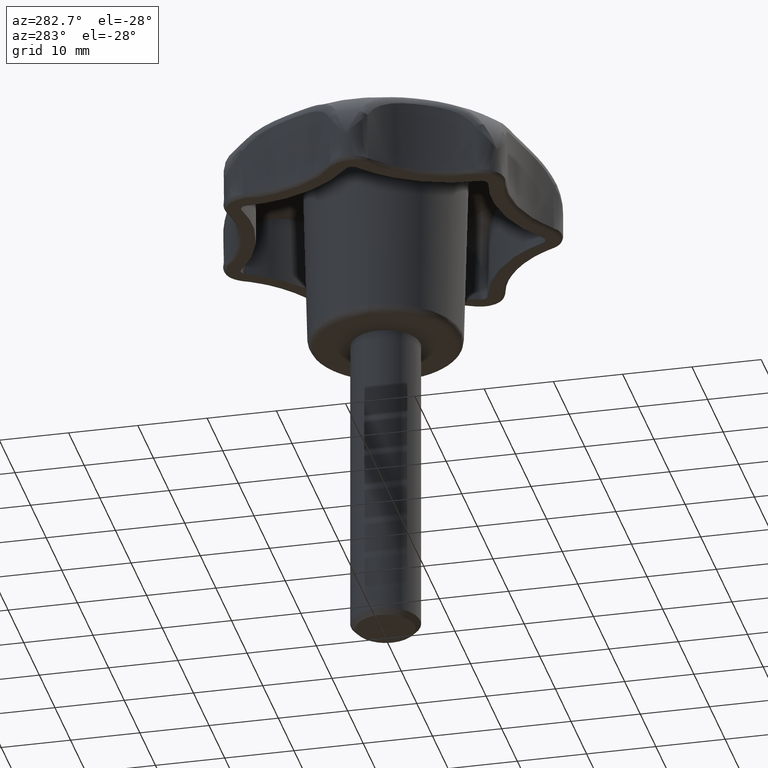
[diagram: clean part render]
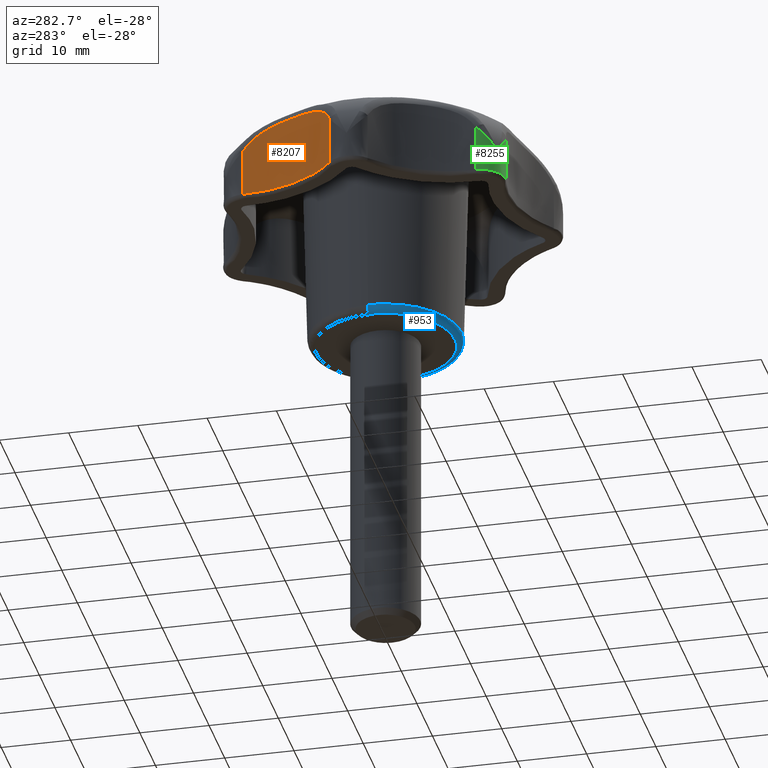
[diagram: same view with three faces highlighted in distinct colors, each labeled with its STEP entity id]
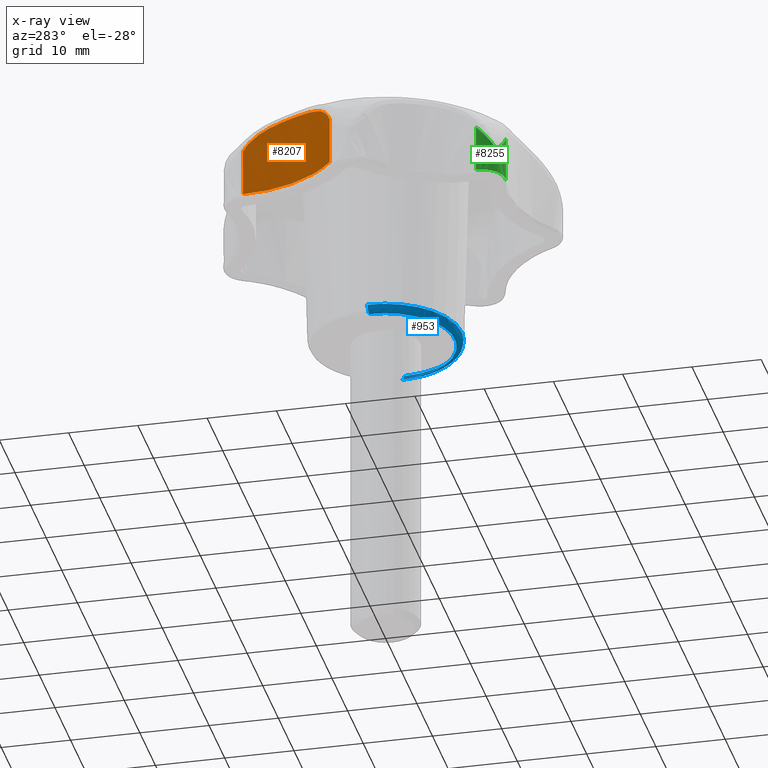
[diagram: x-ray of the same camera — body ghosted, the three highlighted faces saturated]
A machine part, auxiliary view with three faces highlighted in distinct colors.
The next image is the same camera in x-ray (body ghosted, the three faces saturated) — at least one of them is partly hidden behind the body in this view.
Their STEP definitions:

[orange] entity #8207 — the highlighted face is a freeform B-spline surface patch.
#3304=CARTESIAN_POINT('',(-16.905030000000000,16.809377000000001,17.500000000000000));
#3305=VERTEX_POINT('',#3304);
#3596=CARTESIAN_POINT('',(-16.905030000000000,16.809377000000001,24.301414682178500));
#3597=VERTEX_POINT('',#3596);
#3598=CARTESIAN_POINT('',(-16.905030000000000,16.809377000000001,24.301414682178500));
#3599=CARTESIAN_POINT('',(-16.905030000000000,16.809377000000001,17.500000000000000));
#3600=QUASI_UNIFORM_CURVE('',1,(#3598,#3599),.UNSPECIFIED.,.F.,.U.);
#3601=EDGE_CURVE('',#3597,#3305,#3600,.T.);
#4002=CARTESIAN_POINT('',(-23.682214326973849,2.736410172315180,24.301413809661799));
#4003=VERTEX_POINT('',#4002);
#5917=CARTESIAN_POINT('',(-23.682214326973849,2.736410172315180,24.301413809661799));
#5918=CARTESIAN_POINT('',(-23.605401000148301,2.797666287237751,24.470153981205261));
#5919=CARTESIAN_POINT('',(-23.523137919017220,2.864292268412321,24.633567770428272));
#5920=CARTESIAN_POINT('',(-23.392060199538069,2.972659894649852,24.870797247501230));
#5921=CARTESIAN_POINT('',(-23.347085823468849,3.010189261846792,24.948556986351630));
#5922=CARTESIAN_POINT('',(-23.254642629549519,3.088147829876220,25.101441909287480));
#5923=CARTESIAN_POINT('',(-23.207098000570451,3.128643670533346,25.176672222170041));
#5924=CARTESIAN_POINT('',(-22.965174103384989,3.336994838994365,25.543458079341150));
#5925=CARTESIAN_POINT('',(-22.757162778589219,3.523295071185871,25.809008760911869));
#5926=CARTESIAN_POINT('',(-22.429001564703469,3.833577323536156,26.169136389150811));
#5927=CARTESIAN_POINT('',(-22.316910586655460,3.942158534709809,26.282789287257451));
#5928=CARTESIAN_POINT('',(-22.145341122851271,4.113044651329144,26.443988811080061));
#5929=CARTESIAN_POINT('',(-22.087520768548931,4.171402563360294,26.496224970568012));
#5930=CARTESIAN_POINT('',(-21.971085187890449,4.290590622846811,26.597431883347578));
#5931=CARTESIAN_POINT('',(-21.912764666411501,4.351117693688094,26.646151492157308));
#5932=CARTESIAN_POINT('',(-21.620905265312611,4.658370247470036,26.880825945492109));
#5933=CARTESIAN_POINT('',(-21.386648331719851,4.918924686124488,27.040134716609561));
#5934=CARTESIAN_POINT('',(-21.038317510972519,5.331282230565943,27.244233732392079));
#5935=CARTESIAN_POINT('',(-20.922705952608919,5.472326770290310,27.306431520279350));
#5936=CARTESIAN_POINT('',(-20.750487176282089,5.689240271036694,27.391765615882051));
#5937=CARTESIAN_POINT('',(-20.693280243531159,5.762436097078886,27.418882140126051));
#5938=CARTESIAN_POINT('',(-20.579335308597109,5.910606149035420,27.470578066303450));
#5939=CARTESIAN_POINT('',(-20.522505273628020,5.985705220807476,27.495194467836779));
#5940=CARTESIAN_POINT('',(-20.241032692430739,6.363832706960896,27.611669076204912));
#5941=CARTESIAN_POINT('',(-20.024547292821889,6.674504563882254,27.683930181829961));
#5942=CARTESIAN_POINT('',(-19.610072220134811,7.311552438178095,27.796213057376189));
#5943=CARTESIAN_POINT('',(-19.412076153632832,7.637927307042806,27.836214697572700));
#5944=CARTESIAN_POINT('',(-19.129615766604971,8.139135777644938,27.875954754687680));
#5945=CARTESIAN_POINT('',(-19.037883501366981,8.308149990809076,27.885792517717459));
#5946=CARTESIAN_POINT('',(-18.859366545555389,8.650094986392436,27.898921231239669));
#5947=CARTESIAN_POINT('',(-18.772511711019980,8.823171425547034,27.902212504102391));
#5948=CARTESIAN_POINT('',(-18.519975673410240,9.347440388000727,27.902270343031709));
#5949=CARTESIAN_POINT('',(-18.363744157228059,9.700651957925651,27.889380865396252));
#5950=CARTESIAN_POINT('',(-18.075022564175729,10.414147624426210,27.836310216962840));
#5951=CARTESIAN_POINT('',(-17.942536479884190,10.774433429548120,27.796130513454489));
#5952=CARTESIAN_POINT('',(-17.761498800000229,11.319748544971191,27.711045861106669));
#5953=CARTESIAN_POINT('',(-17.703994196446580,11.502737355428700,27.678417153600609));
#5954=CARTESIAN_POINT('',(-17.595872368305081,11.866794768655740,27.604419673959541));
#5955=CARTESIAN_POINT('',(-17.545147887759931,12.048145192052260,27.563024241966222));
#5956=CARTESIAN_POINT('',(-17.402654887952519,12.589636894646979,27.424282751557922));
#5957=CARTESIAN_POINT('',(-17.320572900339510,12.947250671537210,27.312474721297150));
#5958=CARTESIAN_POINT('',(-17.215465910889701,13.475968811079721,27.108739409278819));
#5959=CARTESIAN_POINT('',(-17.183431819688192,13.650916999361240,27.034801915374899));
#5960=CARTESIAN_POINT('',(-17.139696190024679,13.910990805897470,26.913736232906420));
#5961=CARTESIAN_POINT('',(-17.125836734621789,13.997290000531180,26.871685868199201));
#5962=CARTESIAN_POINT('',(-17.099522554685191,14.169026440871461,26.783981740142298));
#5963=CARTESIAN_POINT('',(-17.087095847941161,14.254298362655760,26.738402692907730));
#5964=CARTESIAN_POINT('',(-17.028836372963710,14.674670919398521,26.503118555808200));
#5965=CARTESIAN_POINT('',(-16.994211381814200,14.994485260673310,26.289986174945781));
#5966=CARTESIAN_POINT('',(-16.956101377593789,15.446007934954149,25.928661340331370));
#5967=CARTESIAN_POINT('',(-16.945703781846351,15.591807697850440,25.801270630127679));
#5968=CARTESIAN_POINT('',(-16.928836444304750,15.873247487710840,25.531646411219441));
#5969=CARTESIAN_POINT('',(-16.922469393269079,16.007126268251501,25.391080176841541));
#5970=CARTESIAN_POINT('',(-16.908187942507212,16.387423444468951,24.952947503932940));
#5971=CARTESIAN_POINT('',(-16.905030000000000,16.612992932910430,24.638703118879050));
#5972=CARTESIAN_POINT('',(-16.905030000000000,16.809377000000001,24.301414682178500));
#5973=B_SPLINE_CURVE_WITH_KNOTS('',3,(#5917,#5918,#5919,#5920,#5921,#5922,#5923,#5924,#5925,#5926,#5927,#5928,#5929,#5930,#5931,#5932,#5933,#5934,#5935,#5936,#5937,#5938,#5939,#5940,#5941,#5942,#5943,#5944,#5945,#5946,#5947,#5948,#5949,#5950,#5951,#5952,#5953,#5954,#5955,#5956,#5957,#5958,#5959,#5960,#5961,#5962,#5963,#5964,#5965,#5966,#5967,#5968,#5969,#5970,#5971,#5972),.UNSPECIFIED.,.F.,.U.,(4,2,2,2,2,2,2,2,2,2,2,2,2,2,2,2,2,2,2,2,2,2,2,2,2,2,2,4),(6.141086E-009,0.031250000000000,0.046875000000000,0.062500000000001,0.125000000000000,0.156250000000001,0.171875000000001,0.187500000000001,0.250000000000001,0.281250000000001,0.296875000000000,0.312500000000000,0.375000000000000,0.437500000000000,0.468750000000000,0.500000000000000,0.562500000000000,0.625000000000000,0.656250000000000,0.687500000000000,0.750000000000000,0.781250000000001,0.796875000000001,0.812500000000001,0.875000000000001,0.906250000000001,0.937500000000000,1.0),.UNSPECIFIED.);
#5974=EDGE_CURVE('',#4003,#3597,#5973,.T.);
#7996=CARTESIAN_POINT('',(-23.682214326973849,2.736410172315180,17.500000000000000));
#7997=VERTEX_POINT('',#7996);
#8051=CARTESIAN_POINT('',(-16.905030000000000,16.809377000000001,17.500000000000000));
#8052=CARTESIAN_POINT('',(-16.905029999999989,8.141033440242071,17.500000000000004));
#8053=CARTESIAN_POINT('',(-23.682214101198490,2.736409889201794,17.500000000000000));
#8061=(BOUNDED_CURVE()B_SPLINE_CURVE(2,(#8051,#8052,#8053),.UNSPECIFIED.,.F.,.U.)CURVE()GEOMETRIC_REPRESENTATION_ITEM()QUASI_UNIFORM_CURVE()RATIONAL_B_SPLINE_CURVE((1.0,0.900968859660432,1.0))REPRESENTATION_ITEM(''));
#8062=EDGE_CURVE('',#3305,#7997,#8061,.T.);
#8183=CARTESIAN_POINT('',(-24.198219838475872,2.339953508890089,28.162287666730819));
#8184=CARTESIAN_POINT('',(-24.198219838475872,2.339953508890089,17.233442808331720));
#8185=CARTESIAN_POINT('',(-16.507380171212453,8.030875496950060,28.162287666730823));
#8186=CARTESIAN_POINT('',(-16.507380171212453,8.030875496950060,17.233442808331723));
#8187=CARTESIAN_POINT('',(-16.921935220763711,17.589314280173415,28.162287666730823));
#8188=CARTESIAN_POINT('',(-16.921935220763711,17.589314280173415,17.233442808331723));
#8196=(BOUNDED_SURFACE()B_SPLINE_SURFACE(1,2,((#8183,#8185,#8187),(#8184,#8186,#8188)),.UNSPECIFIED.,.F.,.F.,.U.)B_SPLINE_SURFACE_WITH_KNOTS((2,2),(3,3),(0.0,10.928844858399099),(0.0,17.945983702385281),.UNSPECIFIED.)GEOMETRIC_REPRESENTATION_ITEM()RATIONAL_B_SPLINE_SURFACE(((1.0,0.879150756821254,0.991265390878187),(1.0,0.879150756821254,0.991265390878187)))REPRESENTATION_ITEM('')SURFACE());
#8197=CARTESIAN_POINT('',(-23.682214326973849,2.736410172315180,24.301413809661799));
#8198=CARTESIAN_POINT('',(-23.682214326973849,2.736410172315180,17.500000000000000));
#8199=QUASI_UNIFORM_CURVE('',1,(#8197,#8198),.UNSPECIFIED.,.F.,.U.);
#8200=EDGE_CURVE('',#4003,#7997,#8199,.T.);
#8201=ORIENTED_EDGE('',*,*,#8200,.F.);
#8202=ORIENTED_EDGE('',*,*,#5974,.T.);
#8203=ORIENTED_EDGE('',*,*,#3601,.T.);
#8204=ORIENTED_EDGE('',*,*,#8062,.T.);
#8205=EDGE_LOOP('',(#8201,#8202,#8203,#8204));
#8206=FACE_OUTER_BOUND('',#8205,.T.);
#8207=ADVANCED_FACE('',(#8206),#8196,.F.);

[blue] entity #953 — the highlighted face is a freeform B-spline surface patch.
#750=CARTESIAN_POINT('',(-10.025842676378041,0.0,0.0));
#751=VERTEX_POINT('',#750);
#752=CARTESIAN_POINT('',(-10.025051082478480,0.125985139209719,1.871005E-016));
#753=VERTEX_POINT('',#752);
#754=CARTESIAN_POINT('',(-10.025842676378041,0.0,0.0));
#755=CARTESIAN_POINT('',(-10.025842678625093,0.062995056517288,9.355026E-017));
#756=CARTESIAN_POINT('',(-10.025051082478484,0.125985139209719,1.871005E-016));
#764=(BOUNDED_CURVE()B_SPLINE_CURVE(2,(#754,#755,#756),.UNSPECIFIED.,.F.,.U.)B_SPLINE_CURVE_WITH_KNOTS((3,3),(0.0,0.002215704082090),.UNSPECIFIED.)CURVE()GEOMETRIC_REPRESENTATION_ITEM()RATIONAL_B_SPLINE_CURVE((1.0,0.997404141197834,0.994854295635224))REPRESENTATION_ITEM(''));
#765=EDGE_CURVE('',#751,#753,#764,.T.);
#796=CARTESIAN_POINT('',(10.025051082478480,-0.125985139209717,1.871005E-016));
#797=VERTEX_POINT('',#796);
#811=CARTESIAN_POINT('',(10.025051082478480,-0.125985139209717,1.871005E-016));
#812=CARTESIAN_POINT('',(10.014531916175100,-0.983740842201013,1.870527E-016));
#813=CARTESIAN_POINT('',(9.802982444361600,-2.472013277428135,1.851660E-016));
#814=CARTESIAN_POINT('',(9.036132102276612,-4.485051421684818,1.781286E-016));
#815=CARTESIAN_POINT('',(8.136429560410763,-5.931361138556760,1.698183E-016));
#816=CARTESIAN_POINT('',(7.223722463484466,-6.981620881684022,1.613635E-016));
#817=CARTESIAN_POINT('',(6.292153064178888,-7.841565221970505,1.527215E-016));
#818=CARTESIAN_POINT('',(5.089060416010184,-8.695211347811030,1.415456E-016));
#819=CARTESIAN_POINT('',(3.405213399210645,-9.500315294949706,1.258810E-016));
#820=CARTESIAN_POINT('',(1.692446144356918,-9.932771486440782,1.099247E-016));
#821=CARTESIAN_POINT('',(0.121142777405609,-10.052660163982440,9.527001E-017));
#822=CARTESIAN_POINT('',(-1.227761812256289,-9.982315539522379,8.267937E-017));
#823=CARTESIAN_POINT('',(-2.655683593241932,-9.708273007619917,6.933949E-017));
#824=CARTESIAN_POINT('',(-4.218932564935768,-9.151091605625551,5.472029E-017));
#825=CARTESIAN_POINT('',(-5.753098409417582,-8.279691404636461,4.035403E-017));
#826=CARTESIAN_POINT('',(-6.976359322348848,-7.249396461246943,2.887948E-017));
#827=CARTESIAN_POINT('',(-8.009900378443001,-6.088127872255979,1.916752E-017));
#828=CARTESIAN_POINT('',(-8.789532654692165,-4.907536273236334,1.182362E-017));
#829=CARTESIAN_POINT('',(-9.485925844389477,-3.380238189180789,5.236096E-018));
#830=CARTESIAN_POINT('',(-9.922505477861003,-1.776864585816923,1.068406E-018));
#831=CARTESIAN_POINT('',(-10.025880267143201,-0.571860520380574,3.317664E-020));
#832=CARTESIAN_POINT('',(-10.025842676378041,0.0,0.0));
#833=B_SPLINE_CURVE_WITH_KNOTS('',3,(#811,#812,#813,#814,#815,#816,#817,#818,#819,#820,#821,#822,#823,#824,#825,#826,#827,#828,#829,#830,#831,#832),.UNSPECIFIED.,.F.,.U.,(4,1,1,1,1,1,1,1,1,1,1,1,1,1,1,1,1,1,1,4),(0.000000143415754,2.573392758754878,4.472839126913513,6.433534037142657,7.658979924012872,8.639334755467683,10.232405299344769,12.070584201304101,14.215084172034389,15.501808086450501,16.788434348078209,18.258980425876629,19.852041884165232,21.751487728899789,23.528381977242748,24.631283211562192,26.408180766125941,27.756156466935320,29.655590134597372,31.371174065977740),.UNSPECIFIED.);
#834=EDGE_CURVE('',#797,#751,#833,.T.);
#845=CARTESIAN_POINT('',(11.027940483581160,0.169657150837379,1.042530501578344));
#846=CARTESIAN_POINT('',(11.026015201079675,0.016456102047330,1.042530501578344));
#847=CARTESIAN_POINT('',(10.885527553815916,-11.162607171165357,1.042530501578344));
#848=CARTESIAN_POINT('',(-0.138539808674720,-11.024067362490634,1.042530501578344));
#849=CARTESIAN_POINT('',(-11.162607171165357,-10.885527553815917,1.042530501578344));
#850=CARTESIAN_POINT('',(-11.022119523899864,0.293535719535470,1.042530501578344));
#851=CARTESIAN_POINT('',(-11.020194241396679,0.446736768461016,1.042530501578344));
#852=CARTESIAN_POINT('',(11.075498973596124,0.170388804941432,-0.074374273885127));
#853=CARTESIAN_POINT('',(11.073565388227141,0.016527069728564,-0.074374273885127));
#854=CARTESIAN_POINT('',(10.932471881657236,-11.210746417335688,-0.074374273885127));
#855=CARTESIAN_POINT('',(-0.139137267839225,-11.071609149496464,-0.074374273885127));
#856=CARTESIAN_POINT('',(-11.210746417335688,-10.932471881657239,-0.074374273885127));
#857=CARTESIAN_POINT('',(-11.069652910764034,0.294801605546312,-0.074374273885127));
#858=CARTESIAN_POINT('',(-11.067719325393345,0.448663340895262,-0.074374273885127));
#859=CARTESIAN_POINT('',(9.959915466003144,0.153226332972964,0.002358440826706));
#860=CARTESIAN_POINT('',(9.958176641696696,0.014862374850078,0.002358440826706));
#861=CARTESIAN_POINT('',(9.831294827921230,-10.081540063671428,0.002358440826706));
#862=CARTESIAN_POINT('',(-0.125122617875099,-9.956417445796328,0.002358440826706));
#863=CARTESIAN_POINT('',(-10.081540063671428,-9.831294827921230,0.002358440826706));
#864=CARTESIAN_POINT('',(-9.954658249894386,0.265107610725543,0.002358440826706));
#865=CARTESIAN_POINT('',(-9.952919425586400,0.403471568970804,0.002358440826706));
#873=(BOUNDED_SURFACE()B_SPLINE_SURFACE(2,2,((#845,#852,#859),(#846,#853,#860),(#847,#854,#861),(#848,#855,#862),(#849,#856,#863),(#850,#857,#864),(#851,#858,#865)),.UNSPECIFIED.,.F.,.F.,.U.)B_SPLINE_SURFACE_WITH_KNOTS((3,1,2,1,3),(3,3),(0.0,0.365334302339291,18.632049421608070,36.898764540876840,37.264098843544971),(0.0,1.789087496624329),.UNSPECIFIED.)GEOMETRIC_REPRESENTATION_ITEM()RATIONAL_B_SPLINE_SURFACE(((0.926890788416479,0.618103863963236,0.927312414658500),(0.921524062986427,0.614525024075516,0.921943247999877),(0.647821066019926,0.432004189779236,0.648115748376231),(0.916157337556375,0.610946184187796,0.916574081341254),(0.647821066019926,0.432004189779236,0.648115748376231),(0.921524062991258,0.614525024078738,0.921943248004710),(0.926890788426140,0.618103863969679,0.927312414668166)))REPRESENTATION_ITEM('')SURFACE());
#874=ORIENTED_EDGE('',*,*,#834,.F.);
#875=CARTESIAN_POINT('',(11.024629472860170,-0.138546872775112,0.973822999676004));
#876=VERTEX_POINT('',#875);
#877=CARTESIAN_POINT('',(11.024629472860168,-0.138546872775112,0.973822999676004));
#878=CARTESIAN_POINT('',(10.999130982987852,-0.138226432521972,4.378313E-009));
#879=CARTESIAN_POINT('',(10.025051082478484,-0.125985139209717,1.871005E-016));
#887=(BOUNDED_CURVE()B_SPLINE_CURVE(2,(#877,#878,#879),.UNSPECIFIED.,.F.,.U.)B_SPLINE_CURVE_WITH_KNOTS((3,3),(-1.730267170216835,-0.268636020562902),.UNSPECIFIED.)CURVE()GEOMETRIC_REPRESENTATION_ITEM()RATIONAL_B_SPLINE_CURVE((0.889695866829231,0.637426581566317,0.890074757308428))REPRESENTATION_ITEM(''));
#888=EDGE_CURVE('',#876,#797,#887,.T.);
#889=ORIENTED_EDGE('',*,*,#888,.F.);
#890=CARTESIAN_POINT('',(0.096209389753238,-11.025080218294979,0.973822682201087));
#891=VERTEX_POINT('',#890);
#892=CARTESIAN_POINT('',(11.024629472860171,-0.138546872775112,0.973822999676004));
#893=CARTESIAN_POINT('',(10.889001651023793,-10.930897873059601,0.973822840859784));
#894=CARTESIAN_POINT('',(0.096209389753238,-11.025080218294979,0.973822682201087));
#902=(BOUNDED_CURVE()B_SPLINE_CURVE(2,(#892,#893,#894),.UNSPECIFIED.,.F.,.U.)B_SPLINE_CURVE_WITH_KNOTS((3,3),(0.502215704078931,0.748460185984060),.UNSPECIFIED.)CURVE()GEOMETRIC_REPRESENTATION_ITEM()RATIONAL_B_SPLINE_CURVE((0.994854295642495,0.711474667200933,0.996414213981245))REPRESENTATION_ITEM(''));
#903=EDGE_CURVE('',#876,#891,#902,.T.);
#904=ORIENTED_EDGE('',*,*,#903,.T.);
#905=CARTESIAN_POINT('',(-11.025499999999990,0.0,0.973822999999896));
#906=VERTEX_POINT('',#905);
#907=CARTESIAN_POINT('',(0.096209389753238,-11.025080218294979,0.973822682201087));
#908=CARTESIAN_POINT('',(0.048105610599758,-11.025499991697457,0.973822682888713));
#909=CARTESIAN_POINT('',(-7.655574E-011,-11.025499991715609,0.973822683582358));
#910=CARTESIAN_POINT('',(-11.025500000036002,-11.025499995875904,0.973822842561520));
#911=CARTESIAN_POINT('',(-11.025499999999990,0.0,0.973822999999896));
#919=(BOUNDED_CURVE()B_SPLINE_CURVE(2,(#907,#908,#909,#910,#911),.UNSPECIFIED.,.F.,.U.)B_SPLINE_CURVE_WITH_KNOTS((3,2,3),(0.748460185984060,0.750000000000000,1.0),.UNSPECIFIED.)CURVE()GEOMETRIC_REPRESENTATION_ITEM()RATIONAL_B_SPLINE_CURVE((0.996414213981245,0.998195995665989,1.0,0.707106781186548,1.0))REPRESENTATION_ITEM(''));
#920=EDGE_CURVE('',#891,#906,#919,.T.);
#921=ORIENTED_EDGE('',*,*,#920,.T.);
#922=CARTESIAN_POINT('',(-11.024629472860170,0.138546872775115,0.973822999676004));
#923=VERTEX_POINT('',#922);
#924=CARTESIAN_POINT('',(-11.025499999999990,0.0,0.973822999999896));
#925=CARTESIAN_POINT('',(-11.025499999995752,0.069276171265188,0.973822999837950));
#926=CARTESIAN_POINT('',(-11.024629472860171,0.138546872775115,0.973822999676004));
#934=(BOUNDED_CURVE()B_SPLINE_CURVE(2,(#924,#925,#926),.UNSPECIFIED.,.F.,.U.)B_SPLINE_CURVE_WITH_KNOTS((3,3),(0.0,0.002215704078931),.UNSPECIFIED.)CURVE()GEOMETRIC_REPRESENTATION_ITEM()RATIONAL_B_SPLINE_CURVE((1.0,0.997404141201535,0.994854295642495))REPRESENTATION_ITEM(''));
#935=EDGE_CURVE('',#906,#923,#934,.T.);
#936=ORIENTED_EDGE('',*,*,#935,.T.);
#937=CARTESIAN_POINT('',(-11.024629472860168,0.138546872775115,0.973822999676004));
#938=CARTESIAN_POINT('',(-10.999130982987856,0.138226432521975,4.378314E-009));
#939=CARTESIAN_POINT('',(-10.025051082478484,0.125985139209719,1.871005E-016));
#947=(BOUNDED_CURVE()B_SPLINE_CURVE(2,(#937,#938,#939),.UNSPECIFIED.,.F.,.U.)B_SPLINE_CURVE_WITH_KNOTS((3,3),(-1.730267170216835,-0.268636020562902),.UNSPECIFIED.)CURVE()GEOMETRIC_REPRESENTATION_ITEM()RATIONAL_B_SPLINE_CURVE((0.889695866829231,0.637426581566316,0.890074757308428))REPRESENTATION_ITEM(''));
#948=EDGE_CURVE('',#923,#753,#947,.T.);
#949=ORIENTED_EDGE('',*,*,#948,.T.);
#950=ORIENTED_EDGE('',*,*,#765,.F.);
#951=EDGE_LOOP('',(#874,#889,#904,#921,#936,#949,#950));
#952=FACE_OUTER_BOUND('',#951,.T.);
#953=ADVANCED_FACE('',(#952),#873,.T.);

[green] entity #8255 — the highlighted face is a freeform B-spline surface patch.
#4102=CARTESIAN_POINT('',(-15.587244356506300,-19.545787423052200,21.138975563360098));
#4103=VERTEX_POINT('',#4102);
#4129=CARTESIAN_POINT('',(-12.626206854968320,-20.221624590713802,24.301414511253551));
#4130=VERTEX_POINT('',#4129);
#4131=CARTESIAN_POINT('',(-12.626206854968320,-20.221624590713802,24.301414511253551));
#4132=CARTESIAN_POINT('',(-12.895698662353279,-20.283134464002810,24.050994886794570));
#4133=CARTESIAN_POINT('',(-13.163961513040279,-20.311109799324282,23.797851299523771));
#4134=CARTESIAN_POINT('',(-13.561513377565049,-20.308387518872092,23.411183795028261));
#4135=CARTESIAN_POINT('',(-13.693228238022940,-20.299973375022159,23.281138109096918));
#4136=CARTESIAN_POINT('',(-13.889224923490049,-20.276347665508411,23.083960193832681));
#4137=CARTESIAN_POINT('',(-13.954314501726961,-20.266625637334560,23.017859339136670));
#4138=CARTESIAN_POINT('',(-14.083154926170550,-20.243678703213519,22.885662736153371));
#4139=CARTESIAN_POINT('',(-14.147001308894930,-20.230444517990112,22.819471698848560));
#4140=CARTESIAN_POINT('',(-14.336756750595329,-20.185585347496659,22.620530050226829));
#4141=CARTESIAN_POINT('',(-14.460884971943170,-20.148812827078430,22.487411295561600));
#4142=CARTESIAN_POINT('',(-14.703996858076970,-20.061967731489229,22.219711920878702));
#4143=CARTESIAN_POINT('',(-14.823089054094220,-20.011817024631821,22.084993492713370));
#4144=CARTESIAN_POINT('',(-15.054114549691580,-19.899204461239709,21.815417877791479));
#4145=CARTESIAN_POINT('',(-15.166265132498880,-19.836662817694119,21.680320582280348));
#4146=CARTESIAN_POINT('',(-15.328701793983850,-19.734028942115689,21.477410461289431));
#4147=CARTESIAN_POINT('',(-15.381886201945850,-19.698344976541950,21.409724726218649));
#4148=CARTESIAN_POINT('',(-15.460112704766900,-19.642689404189159,21.308174026664162));
#4149=CARTESIAN_POINT('',(-15.485931337656190,-19.623781658929321,21.274317414938089));
#4150=CARTESIAN_POINT('',(-15.524264043333300,-19.594893659417568,21.223534184271479));
#4151=CARTESIAN_POINT('',(-15.536975166755241,-19.585177062139131,21.206605816163140));
#4152=CARTESIAN_POINT('',(-15.562273084433331,-19.565562489709869,21.172761149254669));
#4153=CARTESIAN_POINT('',(-15.574955281736971,-19.555587358251401,21.155894512083940));
#4154=CARTESIAN_POINT('',(-15.587244222800649,-19.545787255390550,21.138975563360152));
#4155=B_SPLINE_CURVE_WITH_KNOTS('',3,(#4131,#4132,#4133,#4134,#4135,#4136,#4137,#4138,#4139,#4140,#4141,#4142,#4143,#4144,#4145,#4146,#4147,#4148,#4149,#4150,#4151,#4152,#4153,#4154),.UNSPECIFIED.,.F.,.U.,(4,2,2,2,2,2,2,2,2,2,2,4),(0.000000037828185,0.250000000000002,0.375000000000002,0.437500000000003,0.500000000000004,0.625000000000004,0.750000000000003,0.875000000000003,0.937500000000002,0.968750000000002,0.984375000000001,1.0),.UNSPECIFIED.);
#4156=EDGE_CURVE('',#4130,#4103,#4155,.T.);
#7851=CARTESIAN_POINT('',(-12.626206854968320,-20.221624590713802,17.500000000000000));
#7852=VERTEX_POINT('',#7851);
#7898=CARTESIAN_POINT('',(-16.905030000000000,-16.809377000000001,17.500000000000000));
#7899=VERTEX_POINT('',#7898);
#7915=CARTESIAN_POINT('',(-16.905030000000000,-16.809377000000001,17.500000000000000));
#7916=CARTESIAN_POINT('',(-16.905061109078741,-17.038447932839858,17.500000000000050));
#7917=CARTESIAN_POINT('',(-16.861481597485501,-17.480211393450841,17.499999999999950));
#7918=CARTESIAN_POINT('',(-16.642639503764009,-18.220825056918699,17.500000000000039));
#7919=CARTESIAN_POINT('',(-16.257439989558890,-18.895175927709420,17.499999999999961));
#7920=CARTESIAN_POINT('',(-15.692618137457711,-19.492522813727231,17.500000000000160));
#7921=CARTESIAN_POINT('',(-15.136624442621761,-19.875412179220401,17.499999999999851));
#7922=CARTESIAN_POINT('',(-14.490473542368809,-20.159104069153511,17.500000000000050));
#7923=CARTESIAN_POINT('',(-13.671792573453150,-20.346051299214910,17.499999999999840));
#7924=CARTESIAN_POINT('',(-13.009033178436351,-20.309273196044860,17.500000000000259));
#7925=CARTESIAN_POINT('',(-12.626206854968320,-20.221624590713802,17.500000000000000));
#7926=B_SPLINE_CURVE_WITH_KNOTS('',3,(#7915,#7916,#7917,#7918,#7919,#7920,#7921,#7922,#7923,#7924,#7925),.UNSPECIFIED.,.F.,.U.,(4,1,1,1,1,1,1,1,4),(0.000000061484512,0.687210833517650,1.325369358849666,2.307131049816821,2.994381630174951,3.779752242967043,4.319722180961666,5.105132911222174,6.283236700817318),.UNSPECIFIED.);
#7927=EDGE_CURVE('',#7899,#7852,#7926,.T.);
#8083=CARTESIAN_POINT('',(-12.626206854968320,-20.221624590713802,24.301414511253551));
#8084=CARTESIAN_POINT('',(-12.626206854968320,-20.221624590713802,17.500000000000000));
#8085=QUASI_UNIFORM_CURVE('',1,(#8083,#8084),.UNSPECIFIED.,.F.,.U.);
#8086=EDGE_CURVE('',#4130,#7852,#8085,.T.);
#8106=CARTESIAN_POINT('',(-16.905030000000000,-16.809377000000001,24.301414682178400));
#8107=VERTEX_POINT('',#8106);
#8108=CARTESIAN_POINT('',(-16.905030000000000,-16.809377000000001,24.301414682178400));
#8109=CARTESIAN_POINT('',(-16.905030000000000,-16.809377000000001,17.500000000000000));
#8110=QUASI_UNIFORM_CURVE('',1,(#8108,#8109),.UNSPECIFIED.,.F.,.U.);
#8111=EDGE_CURVE('',#8107,#7899,#8110,.T.);
#8208=CARTESIAN_POINT('',(-16.903591322412691,-16.709034220897919,24.471450049232860));
#8209=CARTESIAN_POINT('',(-16.903591322412691,-16.709034220897919,17.325713748769179));
#8210=CARTESIAN_POINT('',(-17.044123863327087,-21.608855778394343,24.471450049232864));
#8211=CARTESIAN_POINT('',(-17.044123863327087,-21.608855778394343,17.325713748769186));
#8212=CARTESIAN_POINT('',(-12.364095833297648,-20.151001763583082,24.471450049232860));
#8213=CARTESIAN_POINT('',(-12.364095833297648,-20.151001763583082,17.325713748769171));
#8221=(BOUNDED_SURFACE()B_SPLINE_SURFACE(1,2,((#8208,#8210,#8212),(#8209,#8211,#8213)),.UNSPECIFIED.,.F.,.F.,.U.)B_SPLINE_SURFACE_WITH_KNOTS((2,2),(3,3),(0.0,7.145736300463683),(0.0,7.206219545721316),.UNSPECIFIED.)GEOMETRIC_REPRESENTATION_ITEM()RATIONAL_B_SPLINE_SURFACE(((1.0,0.580950306970125,0.999505589316004),(1.0,0.580950306970125,0.999505589316004)))REPRESENTATION_ITEM('')SURFACE());
#8222=ORIENTED_EDGE('',*,*,#8086,.F.);
#8223=ORIENTED_EDGE('',*,*,#4156,.T.);
#8224=CARTESIAN_POINT('',(-15.587244356506300,-19.545787423052200,21.138975563360098));
#8225=CARTESIAN_POINT('',(-15.599533164852989,-19.535987151741260,21.155894513444409));
#8226=CARTESIAN_POINT('',(-15.612080254965701,-19.525842599104781,21.172761151978481));
#8227=CARTESIAN_POINT('',(-15.636832368593160,-19.505543605869502,21.206605821616940));
#8228=CARTESIAN_POINT('',(-15.649133843146871,-19.495313323059481,21.223534191089641));
#8229=CARTESIAN_POINT('',(-15.685827394447500,-19.464369882647500,21.274317425849048));
#8230=CARTESIAN_POINT('',(-15.710006272523980,-19.443405945632669,21.308174040302831));
#8231=CARTESIAN_POINT('',(-15.781673487350460,-19.379525273417681,21.409724748035998));
#8232=CARTESIAN_POINT('',(-15.828297431697081,-19.335614737947211,21.477410488555709));
#8233=CARTESIAN_POINT('',(-15.964503637444350,-19.200088884739980,21.680320625854218));
#8234=CARTESIAN_POINT('',(-16.050433095389899,-19.104666972496940,21.815417932202749));
#8235=CARTESIAN_POINT('',(-16.211630257530320,-18.904492411946141,22.084993568612870));
#8236=CARTESIAN_POINT('',(-16.287024098423650,-18.799545682380259,22.219712007503642));
#8237=CARTESIAN_POINT('',(-16.425789308944069,-18.581853957566370,22.487411403176480));
#8238=CARTESIAN_POINT('',(-16.489261001856271,-18.469020538077672,22.620530168181538));
#8239=CARTESIAN_POINT('',(-16.575220028978041,-18.294004753594098,22.819471832166769));
#8240=CARTESIAN_POINT('',(-16.602329565897548,-18.234704011890411,22.885662874568339));
#8241=CARTESIAN_POINT('',(-16.653370870846540,-18.114200049957759,23.017859487711060));
#8242=CARTESIAN_POINT('',(-16.677332944379330,-18.052905753333910,23.083960347478840));
#8243=CARTESIAN_POINT('',(-16.743979682107529,-17.867080314262161,23.281138277521642));
#8244=CARTESIAN_POINT('',(-16.781492184189499,-17.740540133087389,23.411183973032418));
#8245=CARTESIAN_POINT('',(-16.872609843058630,-17.353561416117230,23.797851544628951));
#8246=CARTESIAN_POINT('',(-16.905030000000000,-17.085799443650000,24.050995063732000));
#8247=CARTESIAN_POINT('',(-16.905030000000000,-16.809377000000051,24.301414682178400));
#8248=B_SPLINE_CURVE_WITH_KNOTS('',3,(#8224,#8225,#8226,#8227,#8228,#8229,#8230,#8231,#8232,#8233,#8234,#8235,#8236,#8237,#8238,#8239,#8240,#8241,#8242,#8243,#8244,#8245,#8246,#8247),.UNSPECIFIED.,.F.,.U.,(4,2,2,2,2,2,2,2,2,2,2,4),(0.0,0.015624999999999,0.031250000000000,0.062500000000000,0.124999999999999,0.250000000000000,0.375000000000001,0.500000000000002,0.562500000000002,0.625000000000002,0.750000000000001,1.0),.UNSPECIFIED.);
#8249=EDGE_CURVE('',#4103,#8107,#8248,.T.);
#8250=ORIENTED_EDGE('',*,*,#8249,.T.);
#8251=ORIENTED_EDGE('',*,*,#8111,.T.);
#8252=ORIENTED_EDGE('',*,*,#7927,.T.);
#8253=EDGE_LOOP('',(#8222,#8223,#8250,#8251,#8252));
#8254=FACE_OUTER_BOUND('',#8253,.T.);
#8255=ADVANCED_FACE('',(#8254),#8221,.T.);